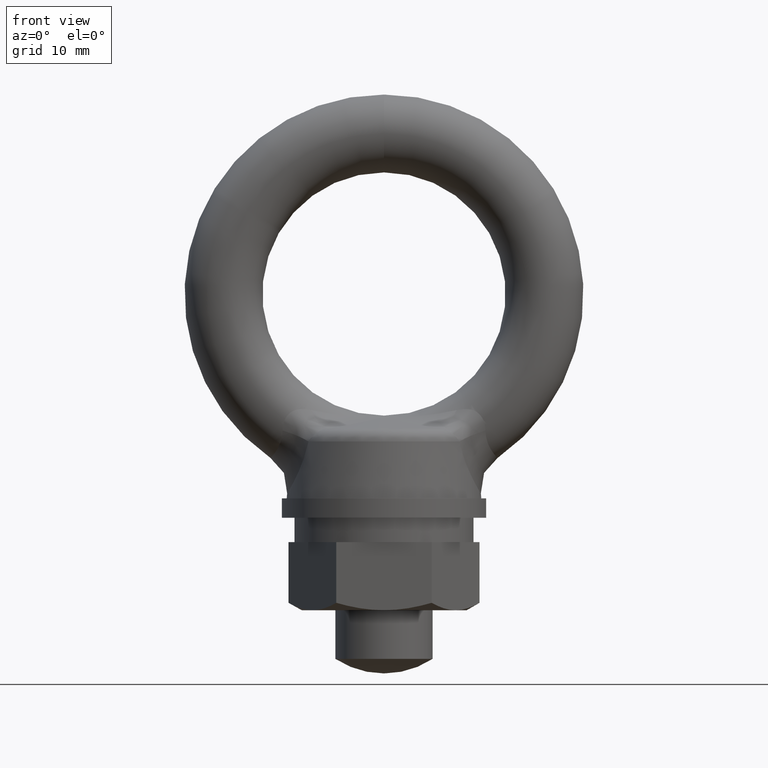
[diagram: clean part render]
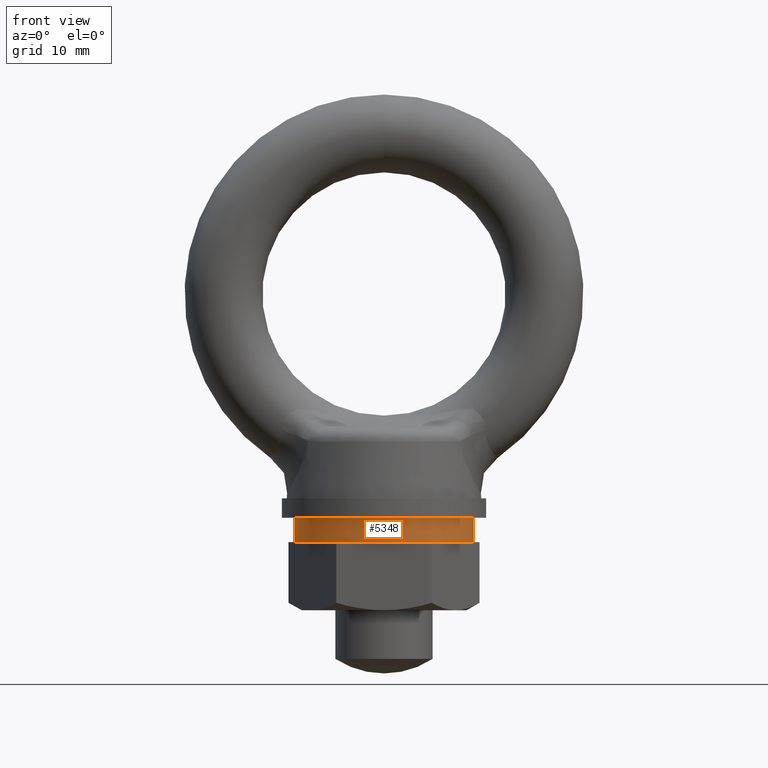
[diagram: same view with one face highlighted and labeled with its STEP entity id]
A machine part, front view. The second image highlights one B-rep face of the part: STEP entity #5348.
In plain terms, the highlighted cylindrical surface (partial cylindrical patch) has radius 9.2 mm, axis along (0, 0, -1).
Its self-contained STEP definition (entity closure, byte-faithful):
#2240 = DIRECTION ( 'NONE',  ( -1.000000000000000000, 0.0000000000000000000, 0.0000000000000000000 ) ) ;
#2280 = AXIS2_PLACEMENT_3D ( 'NONE', #2349, #2324, #2240 ) ;
#2322 = CIRCLE ( 'NONE', #2352, 9.199999999999999300 ) ;
#2323 = DIRECTION ( 'NONE',  ( 0.0000000000000000000, 0.0000000000000000000, -1.000000000000000000 ) ) ;
#2324 = DIRECTION ( 'NONE',  ( 0.0000000000000000000, 0.0000000000000000000, -1.000000000000000000 ) ) ;
#2348 = DIRECTION ( 'NONE',  ( 1.000000000000000000, 0.0000000000000000000, 0.0000000000000000000 ) ) ;
#2349 = CARTESIAN_POINT ( 'NONE',  ( 0.0000000000000000000, 0.0000000000000000000, 974.5000000000000000 ) ) ;
#2351 = CARTESIAN_POINT ( 'NONE',  ( 0.0000000000000000000, 0.0000000000000000000, -23.00000000000000000 ) ) ;
#2352 = AXIS2_PLACEMENT_3D ( 'NONE', #2351, #2323, #2348 ) ;
#2383 = CYLINDRICAL_SURFACE ( 'NONE', #2280, 9.199999999999999300 ) ;
#2608 = FACE_OUTER_BOUND ( 'NONE', #5349, .T. ) ;
#2716 = CARTESIAN_POINT ( 'NONE',  ( 0.0000000000000000000, 0.0000000000000000000, -25.50000000000000000 ) ) ;
#2732 = CIRCLE ( 'NONE', #2733, 9.199999999999999300 ) ;
#2733 = AXIS2_PLACEMENT_3D ( 'NONE', #2716, #2822, #2750 ) ;
#2735 = CARTESIAN_POINT ( 'NONE',  ( 9.199999999999999300, 1.126637845516587000E-015, -23.00000000000000000 ) ) ;
#2736 = CARTESIAN_POINT ( 'NONE',  ( -9.199999999999999300, 0.0000000000000000000, -23.00000000000000000 ) ) ;
#2750 = DIRECTION ( 'NONE',  ( 1.000000000000000000, 0.0000000000000000000, 0.0000000000000000000 ) ) ;
#2772 = DIRECTION ( 'NONE',  ( 0.0000000000000000000, 0.0000000000000000000, -1.000000000000000000 ) ) ;
#2773 = VECTOR ( 'NONE', #2772, 1000.000000000000000 ) ;
#2774 = CARTESIAN_POINT ( 'NONE',  ( -9.199999999999999300, 0.0000000000000000000, 974.5000000000000000 ) ) ;
#2775 = LINE ( 'NONE', #2774, #2773 ) ;
#2776 = CARTESIAN_POINT ( 'NONE',  ( -9.199999999999999300, 0.0000000000000000000, -25.50000000000000000 ) ) ;
#2822 = DIRECTION ( 'NONE',  ( 0.0000000000000000000, 0.0000000000000000000, -1.000000000000000000 ) ) ;
#2857 = CARTESIAN_POINT ( 'NONE',  ( 9.199999999999999300, 1.126637845516587000E-015, -25.50000000000000000 ) ) ;
#2858 = DIRECTION ( 'NONE',  ( 0.0000000000000000000, 0.0000000000000000000, -1.000000000000000000 ) ) ;
#2859 = VECTOR ( 'NONE', #2858, 1000.000000000000000 ) ;
#2860 = CARTESIAN_POINT ( 'NONE',  ( 9.199999999999999300, 1.126637845516587000E-015, 974.5000000000000000 ) ) ;
#2861 = LINE ( 'NONE', #2860, #2859 ) ;
#5348 = ADVANCED_FACE ( 'NONE', ( #2608 ), #2383, .T. ) ;
#5349 = EDGE_LOOP ( 'NONE', ( #5350, #5351, #5390, #5370 ) ) ;
#5350 = ORIENTED_EDGE ( 'NONE', *, *, #5461, .F. ) ;
#5351 = ORIENTED_EDGE ( 'NONE', *, *, #5352, .T. ) ;
#5352 = EDGE_CURVE ( 'NONE', #5459, #5458, #2322, .T. ) ;
#5370 = ORIENTED_EDGE ( 'NONE', *, *, #5371, .F. ) ;
#5371 = EDGE_CURVE ( 'NONE', #5462, #5465, #2732, .T. ) ;
#5390 = ORIENTED_EDGE ( 'NONE', *, *, #5467, .T. ) ;
#5458 = VERTEX_POINT ( 'NONE', #2736 ) ;
#5459 = VERTEX_POINT ( 'NONE', #2735 ) ;
#5461 = EDGE_CURVE ( 'NONE', #5459, #5462, #2861, .T. ) ;
#5462 = VERTEX_POINT ( 'NONE', #2857 ) ;
#5465 = VERTEX_POINT ( 'NONE', #2776 ) ;
#5467 = EDGE_CURVE ( 'NONE', #5458, #5465, #2775, .T. ) ;